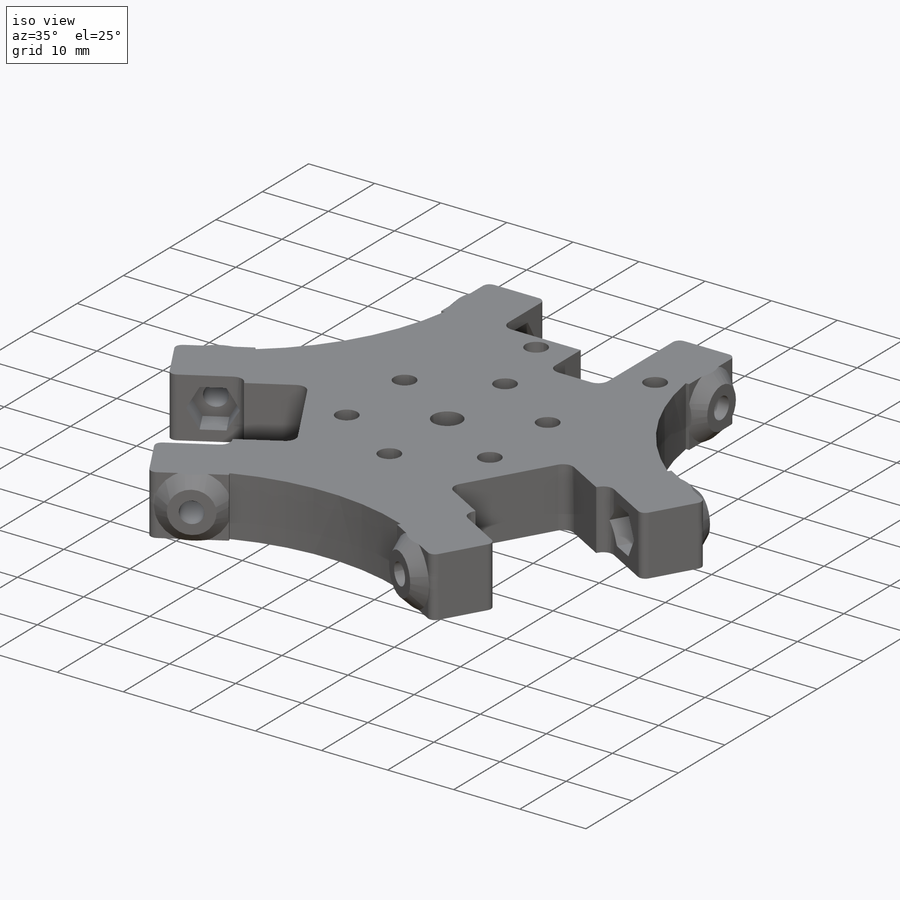
[diagram: iso view]
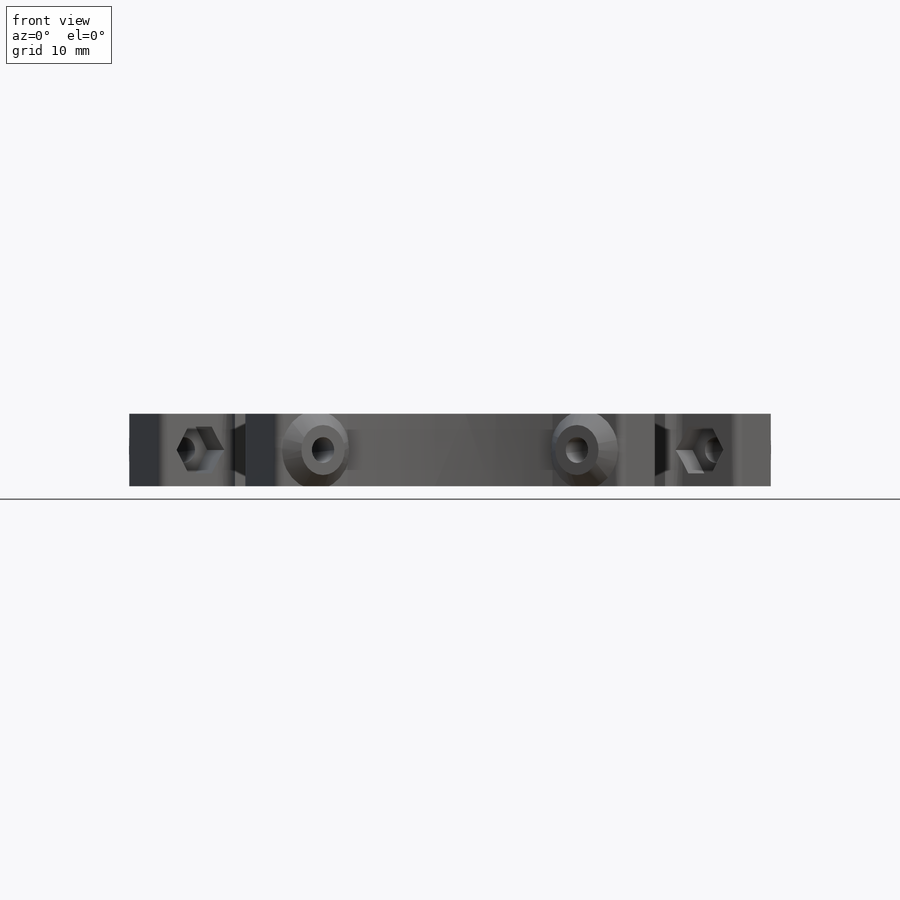
[diagram: front view]
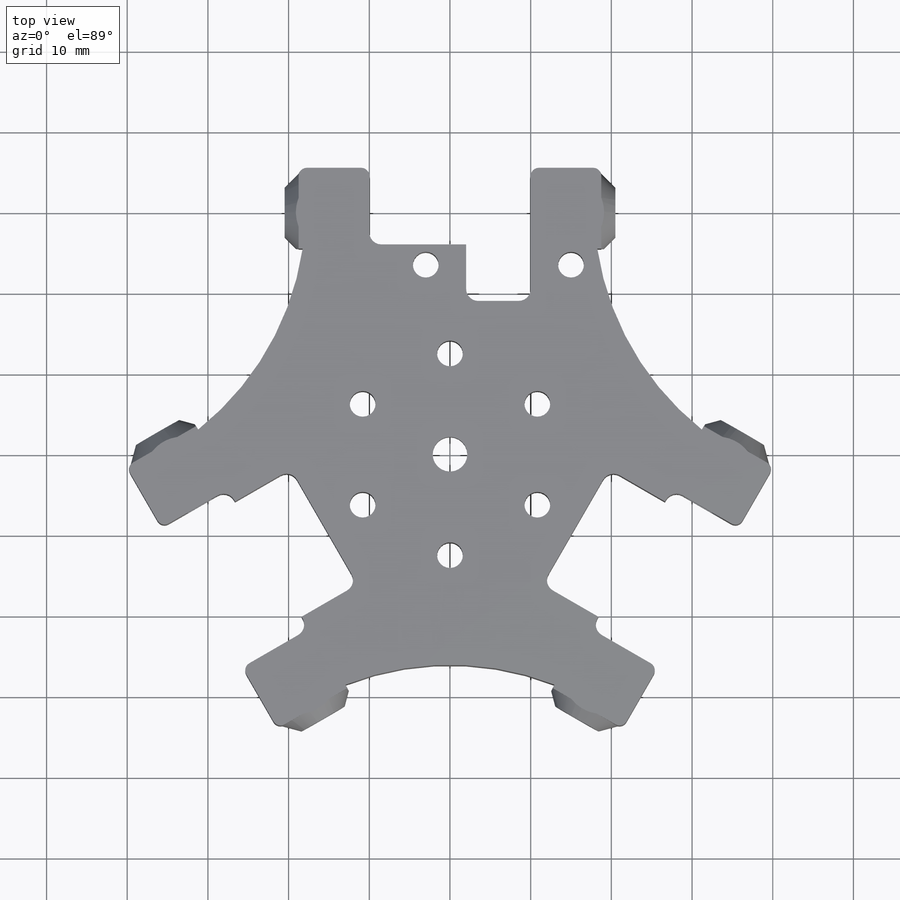
[diagram: top view]
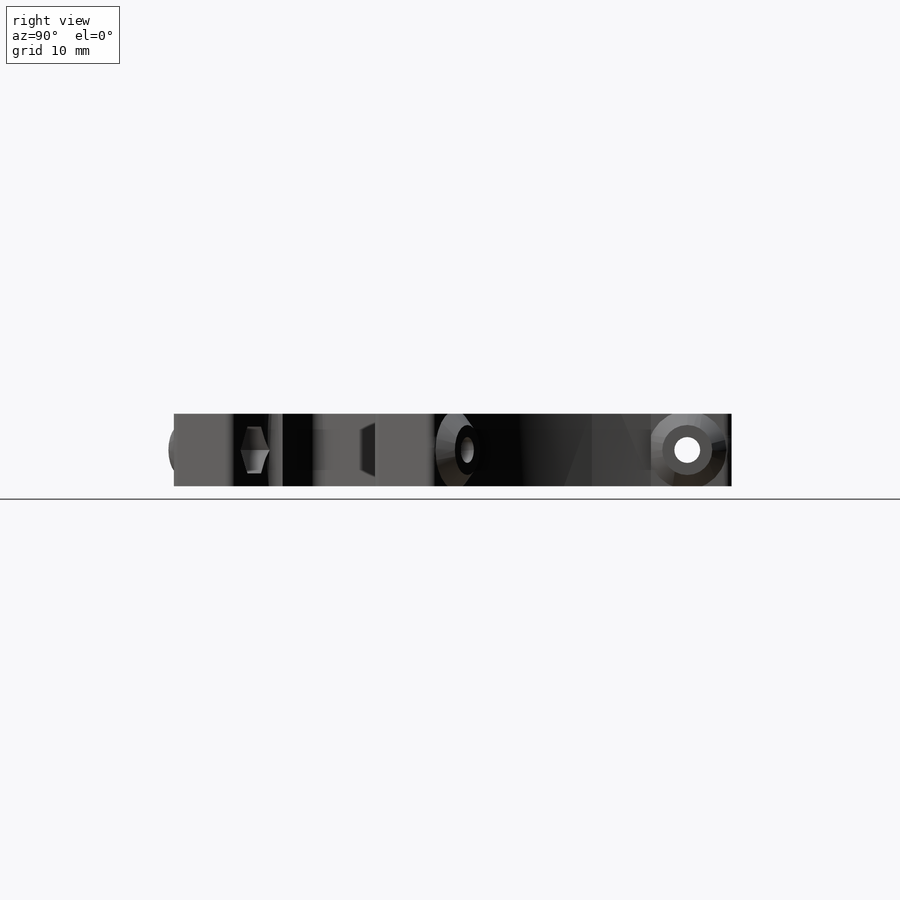
[diagram: right view]
SOLIDWORKS PART (.sldprt)
format: sldprt  version: not decoded by parser v0  size: 870,912 bytes
history: native  units: mm
features: sketch x14, cut_extrude x8, pattern_circular x5, extrude x3, cut_revolve x2, material x1, revolve x1, fillet x1 (+12 scaffold rows collapsed)
feature tree (47):
  scaffold x12  (default folders/planes/origin — collapsed)
  material  "Material <not specified>"
  sketch  "Sketch1"  dims[c1.D1=30.0mm c1.D2=34.0mm c1.D3=3.2mm c1.D4=9.0mm c1.D5=2.0mm c1.D6=~2.430633mm c2.D5=~2.868212mm c3.D5=45.0deg c3.D6=20.5mm c3.D7=1.0mm]
  revolve  "Revolve1"  Angle=360deg
  sketch  "Sketch2"  dims[D1=4.3mm D3=8.0mm D2=3.0mm]
  extrude  "Boss-Extrude2"  Depth=4.5mm
  pattern_circular  "CirPattern1"  Count=3 Angle=120deg
  sketch  "Sketch3"  dims[D1=36.0mm D2=61.5mm]
  extrude  "Boss-Extrude3"  Depth=9mm
  sketch  "Sketch9"  dims[D1=5.7mm]
  cut_extrude  "Cut-Extrude5"  Depth=37.2mm
  pattern_circular  "CirPattern3"  Count=3 Angle=120deg
  sketch  "Sketch10"
  extrude  "Boss-Extrude4"  Depth=41mm
  pattern_circular  "CirPattern10"  Count=3 Angle=120deg
  sketch  "Sketch11"  dims[c1.D1=~1.536847mm c2.D1=135.0deg c2.D2=2.25mm]
  cut_revolve  "Cut-Revolve1"  Angle=360deg
  sketch  "Sketch12"  dims[D1=3.2mm]
  cut_extrude  "Cut-Extrude6"  [1 undecoded]
  sketch  "Sketch13"  dims[D1=1.5mm D2=~6.263854mm D3=20.0mm D4=12.0mm D5=23.0mm D6=14.0mm D7=6.0mm]
  cut_extrude  "Cut-Extrude7"  [1 undecoded]
  pattern_circular  "CirPattern11"  Count=3 Angle=120deg
  sketch  "Sketch14"  dims[D1=5.8mm]
  cut_extrude  "Cut-Extrude8"  Depth=28mm
  sketch  "Sketch15"  dims[D1=16.3mm]
  cut_extrude  "Cut-Extrude9"  Depth=4mm
  sketch  "Sketch16"  dims[D2=3.2mm D1=25.0mm D3=25.0mm]
  cut_extrude  "Cut-Extrude10"  [1 undecoded]
  sketch  "Sketch17"  dims[D1=3.2mm D6=1.5mm D2=18.0mm D3=23.5mm D4=6.0mm D5=7.0mm]
  pattern_circular  "CirPattern15"  Count=3 Angle=120deg
  cut_extrude  "Cut-Extrude11"  [1 undecoded]
  sketch  "Sketch18"  dims[c1.D3=1.5mm c1.D1=16.5mm c1.D2=8.0mm c2.D1=0.6mm]
  cut_revolve  "Move Face3"  [1 undecoded]
  fillet  "Fillet2"  Radius=1mm
  sketch  "Sketch19"  dims[D1=30.0mm]
  cut_extrude  "Cut-Extrude12"  [1 undecoded]
decode coverage: 27 of 34 modeling features carry decoded parameters
note: ~ marks probable driven/reference dimensions
note: 6 parameter values undecoded
summary: no parameter record found for 6 features
note: suppression state not decoded; provenance and decode notes live in map.json
